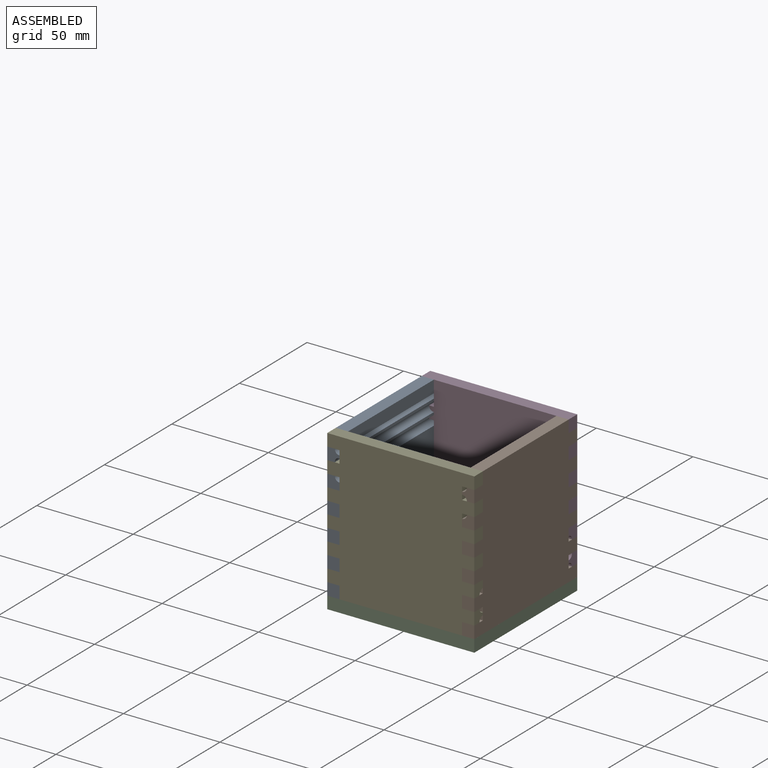
[diagram: assembled view]
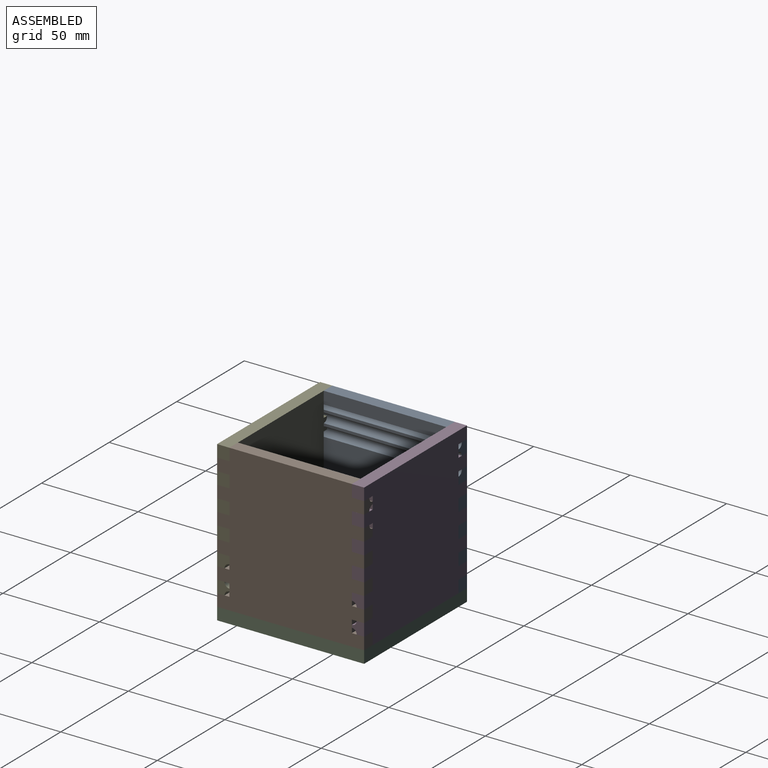
[diagram: assembled view, second angle]
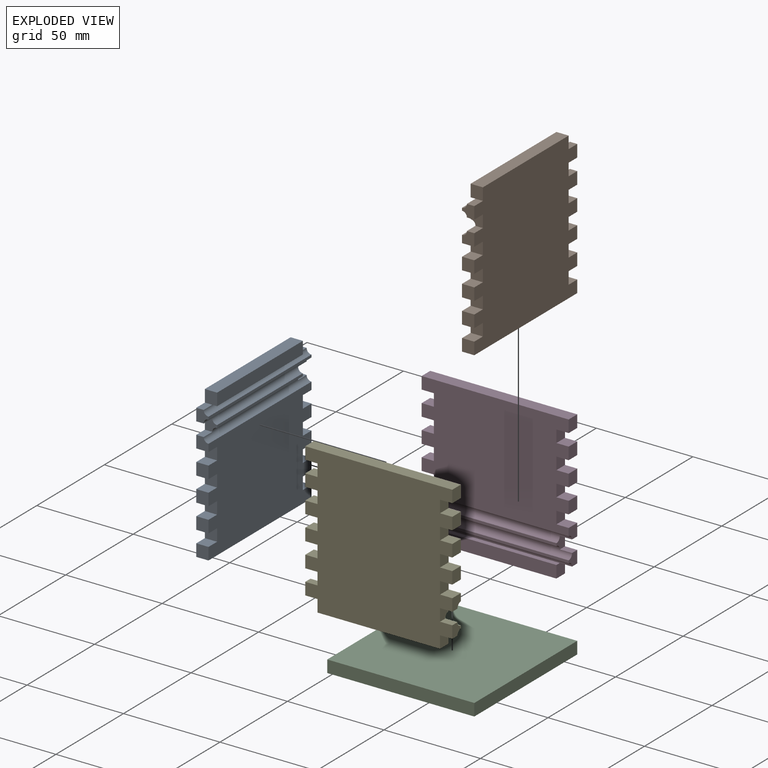
[diagram: exploded view]
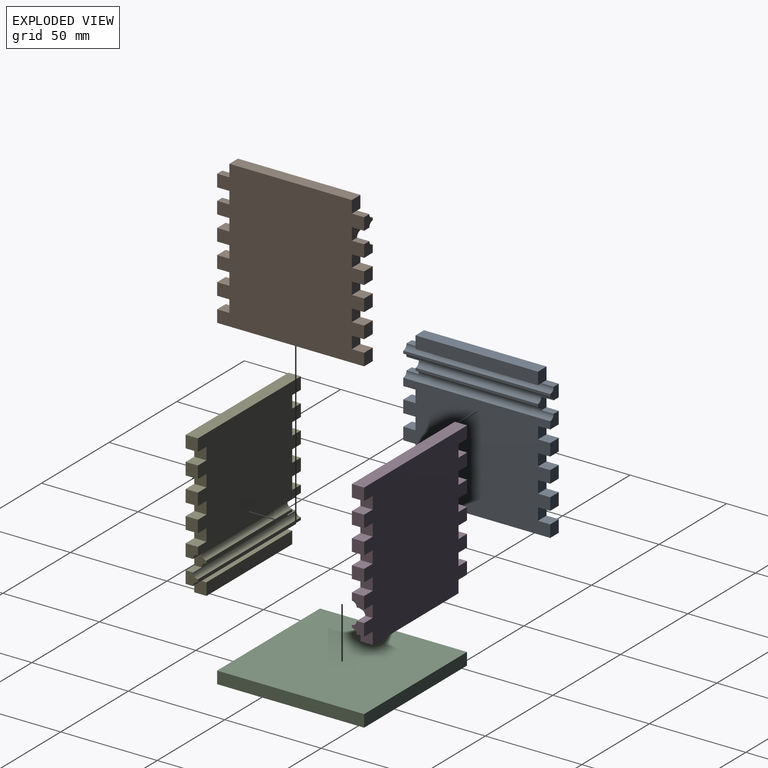
[diagram: exploded view, second angle]
ASSEMBLY  parts=5 mates=4
PART A: 57 faces, bbox 76.2x6.4x76.2 mm
  f0: plane 6.35x3.85mm, normal (0,0,1), area 24.4mm2, adj f18,f19,f52,f56
  f1: plane 6.35x6.35mm, normal (-1,0,0), area 30.5mm2, adj f3,f22,f23,f52,f54,f56
  f2: plane 6.35x6.35mm, normal (-1,0,0), area 35.4mm2, adj f25,f26,f51,f52,f53
  f3: plane 76.2x1.35mm, normal (0,-1,0), area 102.9mm2, adj f1,f18,f54,f56
  f4: plane 63.5x6.35mm, normal (0,-1,0), area 403.2mm2, adj f19,f20,f21,f55
  f5: plane 63.5x1.35mm, normal (0,-1,0), area 85.7mm2, adj f16,f24,f53,f54
  f6: plane 6.35x6.35mm, normal (1,0,0), area 40.3mm2, adj f7,f50,f51,f52
  f7: plane 6.35x6.35mm, normal (0,0,1), area 40.3mm2, adj f6,f8,f51,f52
  f8: plane 6.35x6.35mm, normal (1,0,0), area 40.3mm2, adj f7,f9,f51,f52
  f9: plane 6.35x6.35mm, normal (0,0,-1), area 40.3mm2, adj f8,f10,f51,f52
  f10: plane 6.35x6.35mm, normal (1,0,0), area 40.3mm2, adj f9,f11,f51,f52
  f11: plane 6.35x6.35mm, normal (0,0,1), area 40.3mm2, adj f10,f12,f51,f52
  f12: plane 6.35x6.35mm, normal (1,0,0), area 40.3mm2, adj f11,f13,f51,f52
  f13: plane 6.35x6.35mm, normal (0,0,-1), area 40.3mm2, adj f12,f14,f51,f52
  f14: plane 6.35x6.35mm, normal (1,0,0), area 35.4mm2, adj f13,f15,f51,f52,f53
  f15: plane 6.35x3.85mm, normal (0,0,1), area 24.4mm2, adj f14,f16,f52,f53
  f16: plane 6.35x6.35mm, normal (1,0,0), area 30.5mm2, adj f5,f15,f17,f52,f53,f54
  f17: plane 6.35x3.85mm, normal (0,0,-1), area 24.4mm2, adj f16,f18,f52,f54
  f18: plane 6.35x6.35mm, normal (1,0,0), area 30.5mm2, adj f0,f3,f17,f52,f54,f56
  f19: plane 6.35x6.35mm, normal (1,0,0), area 40.3mm2, adj f0,f4,f20,f52,f55
  f20: plane 63.5x6.35mm, normal (0,0,1), area 403.2mm2, adj f4,f19,f21,f52
  f21: plane 6.35x6.35mm, normal (-1,0,0), area 40.3mm2, adj f4,f20,f22,f52,f55
  f22: plane 6.35x3.85mm, normal (0,0,1), area 24.4mm2, adj f1,f21,f52,f56
  f23: plane 6.35x3.85mm, normal (0,0,-1), area 24.4mm2, adj f1,f24,f52,f54
  f24: plane 6.35x6.35mm, normal (-1,0,0), area 30.5mm2, adj f5,f23,f25,f52,f53,f54
  f25: plane 6.35x3.85mm, normal (0,0,1), area 24.4mm2, adj f2,f24,f52,f53
  f26: plane 6.35x6.35mm, normal (0,0,-1), area 40.3mm2, adj f2,f27,f51,f52
  f27: plane 6.35x6.35mm, normal (-1,0,0), area 40.3mm2, adj f26,f28,f51,f52
  f28: plane 6.35x6.35mm, normal (0,0,1), area 40.3mm2, adj f27,f29,f51,f52
  f29: plane 6.35x6.35mm, normal (-1,0,0), area 40.3mm2, adj f28,f30,f51,f52
  f30: plane 6.35x6.35mm, normal (0,0,-1), area 40.3mm2, adj f29,f31,f51,f52
  f31: plane 6.35x6.35mm, normal (-1,0,0), area 40.3mm2, adj f30,f32,f51,f52
  f32: plane 6.35x6.35mm, normal (0,0,1), area 40.3mm2, adj f31,f33,f51,f52
  f33: plane 6.35x6.35mm, normal (-1,0,0), area 40.3mm2, adj f32,f34,f51,f52
  f34: plane 6.35x6.35mm, normal (0,0,-1), area 40.3mm2, adj f33,f35,f51,f52
  f35: plane 6.35x6.35mm, normal (-1,0,0), area 40.3mm2, adj f34,f36,f51,f52
  f36: plane 6.35x6.35mm, normal (0,0,1), area 40.3mm2, adj f35,f37,f51,f52
  f37: plane 6.35x6.35mm, normal (-1,0,0), area 40.3mm2, adj f36,f38,f51,f52
  f38: plane 6.35x6.35mm, normal (0,0,-1), area 40.3mm2, adj f37,f39,f51,f52
  f39: plane 6.35x6.35mm, normal (-1,0,0), area 40.3mm2, adj f38,f40,f51,f52
  f40: plane 6.35x6.35mm, normal (0,0,1), area 40.3mm2, adj f39,f41,f51,f52
  f41: plane 6.35x6.35mm, normal (-1,0,0), area 40.3mm2, adj f40,f42,f51,f52
  f42: plane 76.2x6.35mm, normal (0,0,-1), area 483.9mm2, adj f41,f43,f51,f52
  f43: plane 6.35x6.35mm, normal (1,0,0), area 40.3mm2, adj f42,f44,f51,f52
  f44: plane 6.35x6.35mm, normal (0,0,1), area 40.3mm2, adj f43,f45,f51,f52
  f45: plane 6.35x6.35mm, normal (1,0,0), area 40.3mm2, adj f44,f46,f51,f52
  f46: plane 6.35x6.35mm, normal (0,0,-1), area 40.3mm2, adj f45,f47,f51,f52
  f47: plane 6.35x6.35mm, normal (1,0,0), area 40.3mm2, adj f46,f48,f51,f52
  f48: plane 6.35x6.35mm, normal (0,0,1), area 40.3mm2, adj f47,f49,f51,f52
  f49: plane 6.35x6.35mm, normal (1,0,0), area 40.3mm2, adj f48,f50,f51,f52
  f50: plane 6.35x6.35mm, normal (0,0,-1), area 40.3mm2, adj f6,f49,f51,f52
  f51: plane 76.2x54.65mm, normal (0,-1,0), area 3841.8mm2, adj f2,f6,f7,f8,f9,f10,f11,f12
  f52: plane 76.2x76.2mm, normal (0,1,0), area 5322.6mm2, adj f0,f1,f2,f6,f7,f8,f9,f10
  f53: cylinder r=2.5mm len=76.2mm, axis (-1,0,0), area 548.6mm2, adj f2,f5,f14,f15,f16,f24,f25,f51
  f54: cylinder r=2.5mm len=76.2mm, axis (-1,0,0), area 548.6mm2, adj f1,f3,f5,f16,f17,f18,f23,f24
  f55: plane 63.5x2.5mm, normal (0,0,-1), area 158.7mm2, adj f4,f19,f21,f56
  f56: cylinder r=2.5mm len=76.2mm, axis (-1,0,0), area 299.2mm2, adj f0,f1,f3,f18,f22,f55
PART B: same geometry as A
PART C: 6 faces, bbox 76.2x76.2x6.4 mm
  f0: plane 76.2x6.35mm, normal (0,1,0), area 483.9mm2, adj f1,f3,f4,f5
  f1: plane 76.2x6.35mm, normal (-1,0,0), area 483.9mm2, adj f0,f2,f4,f5
  f2: plane 76.2x6.35mm, normal (0,-1,0), area 483.9mm2, adj f1,f3,f4,f5
  f3: plane 76.2x6.35mm, normal (1,0,0), area 483.9mm2, adj f0,f2,f4,f5
  f4: plane 76.2x76.2mm, normal (0,0,1), area 5806.4mm2, adj f0,f1,f2,f3
  f5: plane 76.2x76.2mm, normal (0,0,-1), area 5806.4mm2, adj f0,f1,f2,f3
PART D: same geometry as A
PART E: same geometry as A
PLACE A rot(axis=(0,0,1),90deg) t=(-49.96,67.48,46.18)mm
PLACE B rot(axis=(0,0,-1),90deg) t=(26.24,67.48,46.18)mm
PLACE C t=(26.24,29.38,1.73)mm
PLACE D rot(axis=(0,-1,0),180deg) t=(-11.86,105.58,46.18)mm
PLACE E rot(axis=(-1,0,0),180deg) t=(-11.86,29.38,46.18)mm
MATE fastened A.f43 <-> D.f52  axis (0,1,0) through (-43.61,105.58,14.43)mm
MATE fastened A.f41 <-> E.f52  axis (0,-1,0) through (-43.61,29.38,14.43)mm
MATE fastened A.f42 <-> C.f4  axis (0,0,1) through (-49.96,29.38,8.08)mm
MATE fastened C.f4 <-> B.f42  axis (0,0,1) through (26.24,29.38,8.08)mm
